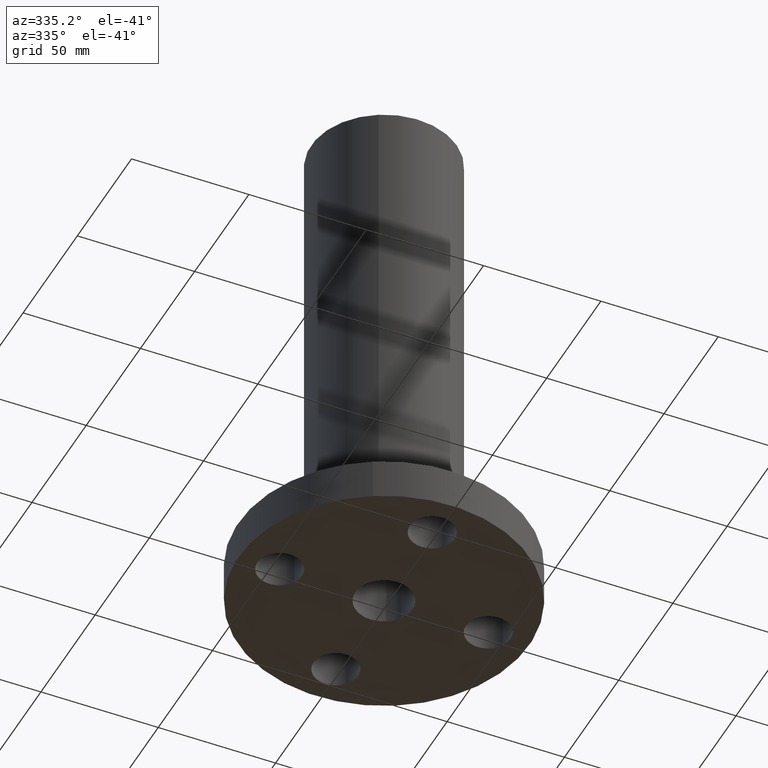
[diagram: clean part render]
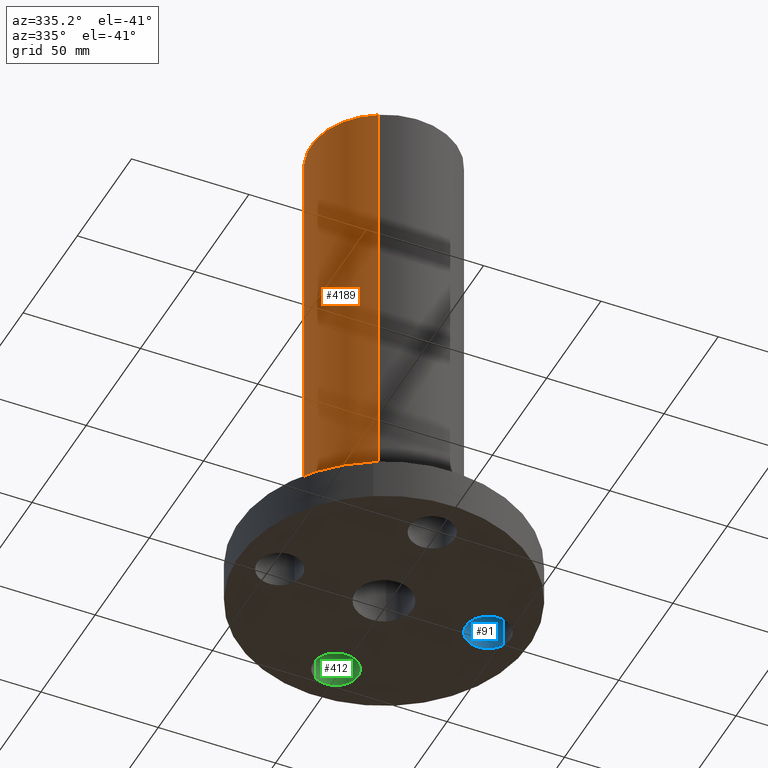
[diagram: same view with three faces highlighted in distinct colors, each labeled with its STEP entity id]
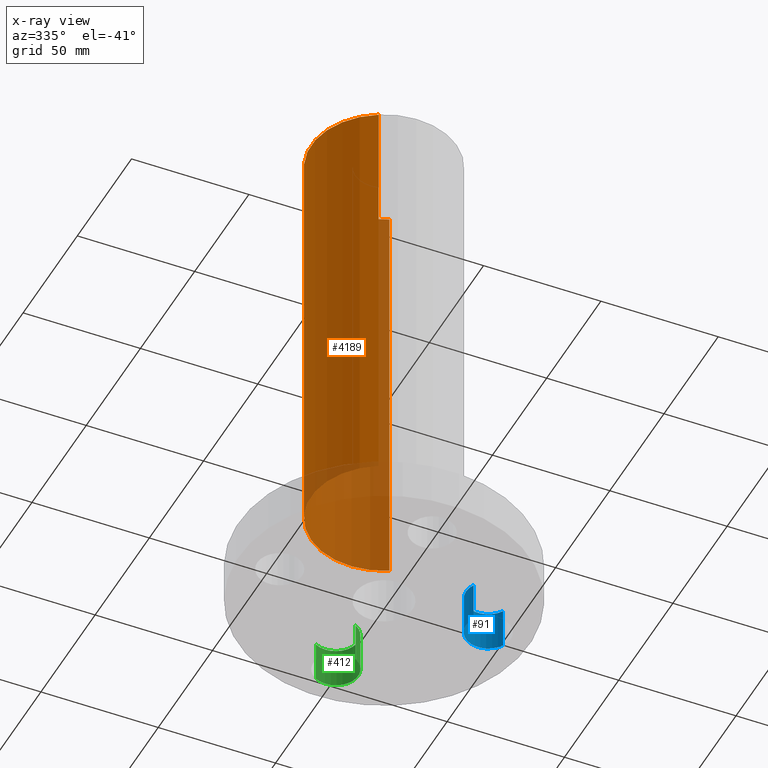
[diagram: x-ray of the same camera — body ghosted, the three highlighted faces saturated]
A machine part, auxiliary view with three faces highlighted in distinct colors.
The next image is the same camera in x-ray (body ghosted, the three faces saturated) — at least one of them is partly hidden behind the body in this view.
Their STEP definitions:

[orange] entity #4189 — the highlighted cylindrical surface (partial cylindrical patch) has radius 30.988 mm, axis along (0, 0, -1).
#1294=AXIS2_PLACEMENT_3D('Circle Axis2P3D',#1292,#1293,$) ;
#4150=AXIS2_PLACEMENT_3D('Cylinder Axis2P3D',#4147,#4148,#4149) ;
#4180=AXIS2_PLACEMENT_3D('Circle Axis2P3D',#4178,#4179,$) ;
#1270=CARTESIAN_POINT('Vertex',(0.584899157099,1.07065072551,1.66237604308)) ;
#1277=CARTESIAN_POINT('Vertex',(-0.584899157099,-1.07065072551,1.66237604308)) ;
#1292=CARTESIAN_POINT('Axis2P3D Location',(0.,0.,1.66237604308)) ;
#4147=CARTESIAN_POINT('Axis2P3D Location',(0.,0.,4.25000000002)) ;
#4152=CARTESIAN_POINT('Line Origine',(0.584899157099,1.07065072551,5.20618802156)) ;
#4156=CARTESIAN_POINT('Vertex',(0.584899157099,1.07065072551,8.75000000004)) ;
#4163=CARTESIAN_POINT('Vertex',(-0.584899157099,-1.07065072551,8.75000000004)) ;
#4166=CARTESIAN_POINT('Line Origine',(-0.584899157099,-1.07065072551,5.20618802156)) ;
#4178=CARTESIAN_POINT('Axis2P3D Location',(0.,0.,8.75000000003)) ;
#1293=DIRECTION('Axis2P3D Direction',(-0.,0.,0.0393700787402)) ;
#4148=DIRECTION('Axis2P3D Direction',(0.,0.,-0.0393700787402)) ;
#4149=DIRECTION('Axis2P3D XDirection',(-0.0188750212049,-0.0345504945626,0.)) ;
#4153=DIRECTION('Vector Direction',(0.,0.,-0.0393700787402)) ;
#4167=DIRECTION('Vector Direction',(0.,0.,-0.0393700787402)) ;
#4179=DIRECTION('Axis2P3D Direction',(0.,0.,-0.0393700787402)) ;
#4154=VECTOR('Line Direction',#4153,0.0393700787402) ;
#4168=VECTOR('Line Direction',#4167,0.0393700787402) ;
#4184=ORIENTED_EDGE('',*,*,#1296,.F.) ;
#4185=ORIENTED_EDGE('',*,*,#4170,.T.) ;
#4186=ORIENTED_EDGE('',*,*,#4182,.T.) ;
#4187=ORIENTED_EDGE('',*,*,#4158,.F.) ;
#4189=ADVANCED_FACE('PartBody',(#4188),#4151,.T.) ;
#1295=CIRCLE('generated circle',#1294,1.22) ;
#4181=CIRCLE('generated circle',#4180,1.22) ;
#4151=CYLINDRICAL_SURFACE('generated cylinder',#4150,1.22) ;
#1296=EDGE_CURVE('',#1278,#1271,#1295,.F.) ;
#4158=EDGE_CURVE('',#1271,#4157,#4155,.F.) ;
#4170=EDGE_CURVE('',#1278,#4164,#4169,.F.) ;
#4182=EDGE_CURVE('',#4164,#4157,#4181,.T.) ;
#4183=EDGE_LOOP('',(#4184,#4185,#4186,#4187)) ;
#4188=FACE_OUTER_BOUND('',#4183,.T.) ;
#4155=LINE('Line',#4152,#4154) ;
#4169=LINE('Line',#4166,#4168) ;
#1271=VERTEX_POINT('',#1270) ;
#1278=VERTEX_POINT('',#1277) ;
#4157=VERTEX_POINT('',#4156) ;
#4164=VERTEX_POINT('',#4163) ;

[blue] entity #91 — the highlighted cylindrical surface (edge-blend (fillet) strip) has radius 9.525 mm, axis along (0, -0, 1).
#38=AXIS2_PLACEMENT_3D('Cylinder Axis2P3D',#35,#36,#37) ;
#77=AXIS2_PLACEMENT_3D('Circle Axis2P3D',#75,#76,$) ;
#82=AXIS2_PLACEMENT_3D('Circle Axis2P3D',#80,#81,$) ;
#35=CARTESIAN_POINT('Axis2P3D Location',(1.75000000001,0.,0.00393700787402)) ;
#40=CARTESIAN_POINT('Line Origine',(1.4209065393,-0.179784576977,0.345000000001)) ;
#44=CARTESIAN_POINT('Vertex',(1.4209065393,-0.179784576977,0.690000000003)) ;
#46=CARTESIAN_POINT('Vertex',(1.4209065393,-0.179784576977,2.2401153548E-016)) ;
#53=CARTESIAN_POINT('Vertex',(2.07909346072,0.179784576977,0.690000000003)) ;
#56=CARTESIAN_POINT('Line Origine',(2.07909346072,0.179784576977,0.345000000001)) ;
#60=CARTESIAN_POINT('Vertex',(2.07909346072,0.179784576977,2.2401153548E-016)) ;
#75=CARTESIAN_POINT('Axis2P3D Location',(1.75000000001,0.,0.690000000003)) ;
#80=CARTESIAN_POINT('Axis2P3D Location',(1.75000000001,0.,0.)) ;
#36=DIRECTION('Axis2P3D Direction',(0.,-0.,0.0393700787402)) ;
#37=DIRECTION('Axis2P3D XDirection',(0.0345504945626,0.0188750212049,0.)) ;
#41=DIRECTION('Vector Direction',(0.,0.,0.0393700787402)) ;
#57=DIRECTION('Vector Direction',(0.,0.,0.0393700787402)) ;
#76=DIRECTION('Axis2P3D Direction',(0.,-0.,0.0393700787402)) ;
#81=DIRECTION('Axis2P3D Direction',(0.,-0.,0.0393700787402)) ;
#42=VECTOR('Line Direction',#41,0.0393700787402) ;
#58=VECTOR('Line Direction',#57,0.0393700787402) ;
#86=ORIENTED_EDGE('',*,*,#62,.F.) ;
#87=ORIENTED_EDGE('',*,*,#79,.F.) ;
#88=ORIENTED_EDGE('',*,*,#48,.T.) ;
#89=ORIENTED_EDGE('',*,*,#84,.T.) ;
#91=ADVANCED_FACE('PartBody',(#90),#39,.F.) ;
#78=CIRCLE('generated circle',#77,0.375000000001) ;
#83=CIRCLE('generated circle',#82,0.375000000001) ;
#39=CYLINDRICAL_SURFACE('generated cylinder',#38,0.375000000001) ;
#48=EDGE_CURVE('',#45,#47,#43,.F.) ;
#62=EDGE_CURVE('',#54,#61,#59,.F.) ;
#79=EDGE_CURVE('',#45,#54,#78,.F.) ;
#84=EDGE_CURVE('',#47,#61,#83,.F.) ;
#85=EDGE_LOOP('',(#86,#87,#88,#89)) ;
#90=FACE_OUTER_BOUND('',#85,.T.) ;
#43=LINE('Line',#40,#42) ;
#59=LINE('Line',#56,#58) ;
#45=VERTEX_POINT('',#44) ;
#47=VERTEX_POINT('',#46) ;
#54=VERTEX_POINT('',#53) ;
#61=VERTEX_POINT('',#60) ;

[green] entity #412 — the highlighted cylindrical surface (edge-blend (fillet) strip) has radius 9.525 mm, axis along (0, 0, 1).
#184=AXIS2_PLACEMENT_3D('Circle Axis2P3D',#182,#183,$) ;
#385=AXIS2_PLACEMENT_3D('Cylinder Axis2P3D',#382,#383,#384) ;
#403=AXIS2_PLACEMENT_3D('Circle Axis2P3D',#401,#402,$) ;
#177=CARTESIAN_POINT('Vertex',(0.179784576977,1.4209065393,0.690000000003)) ;
#179=CARTESIAN_POINT('Vertex',(-0.179784576977,2.07909346072,0.690000000003)) ;
#182=CARTESIAN_POINT('Axis2P3D Location',(-4.19611851827E-016,1.75000000001,0.690000000003)) ;
#382=CARTESIAN_POINT('Axis2P3D Location',(-3.21469784777E-016,1.75000000001,0.00393700787402)) ;
#387=CARTESIAN_POINT('Line Origine',(0.179784576977,1.4209065393,0.345000000001)) ;
#391=CARTESIAN_POINT('Vertex',(0.179784576977,1.4209065393,2.2401153548E-016)) ;
#394=CARTESIAN_POINT('Line Origine',(-0.179784576977,2.07909346072,0.345000000001)) ;
#398=CARTESIAN_POINT('Vertex',(-0.179784576977,2.07909346072,2.2401153548E-016)) ;
#401=CARTESIAN_POINT('Axis2P3D Location',(-3.21469784777E-016,1.75000000001,0.)) ;
#183=DIRECTION('Axis2P3D Direction',(0.,0.,-0.0393700787402)) ;
#383=DIRECTION('Axis2P3D Direction',(0.,0.,0.0393700787402)) ;
#384=DIRECTION('Axis2P3D XDirection',(-0.0188750212049,0.0345504945626,0.)) ;
#388=DIRECTION('Vector Direction',(0.,0.,0.0393700787402)) ;
#395=DIRECTION('Vector Direction',(0.,0.,0.0393700787402)) ;
#402=DIRECTION('Axis2P3D Direction',(0.,0.,0.0393700787402)) ;
#389=VECTOR('Line Direction',#388,0.0393700787402) ;
#396=VECTOR('Line Direction',#395,0.0393700787402) ;
#407=ORIENTED_EDGE('',*,*,#393,.F.) ;
#408=ORIENTED_EDGE('',*,*,#186,.F.) ;
#409=ORIENTED_EDGE('',*,*,#400,.T.) ;
#410=ORIENTED_EDGE('',*,*,#405,.T.) ;
#412=ADVANCED_FACE('PartBody',(#411),#386,.F.) ;
#185=CIRCLE('generated circle',#184,0.375000000001) ;
#404=CIRCLE('generated circle',#403,0.375000000001) ;
#386=CYLINDRICAL_SURFACE('generated cylinder',#385,0.375000000001) ;
#186=EDGE_CURVE('',#180,#178,#185,.T.) ;
#393=EDGE_CURVE('',#178,#392,#390,.F.) ;
#400=EDGE_CURVE('',#180,#399,#397,.F.) ;
#405=EDGE_CURVE('',#399,#392,#404,.F.) ;
#406=EDGE_LOOP('',(#407,#408,#409,#410)) ;
#411=FACE_OUTER_BOUND('',#406,.T.) ;
#390=LINE('Line',#387,#389) ;
#397=LINE('Line',#394,#396) ;
#178=VERTEX_POINT('',#177) ;
#180=VERTEX_POINT('',#179) ;
#392=VERTEX_POINT('',#391) ;
#399=VERTEX_POINT('',#398) ;